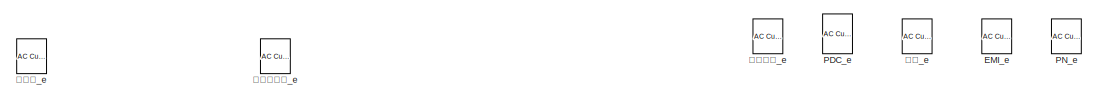
[diagram: root canvas - part 1/4, top center region]
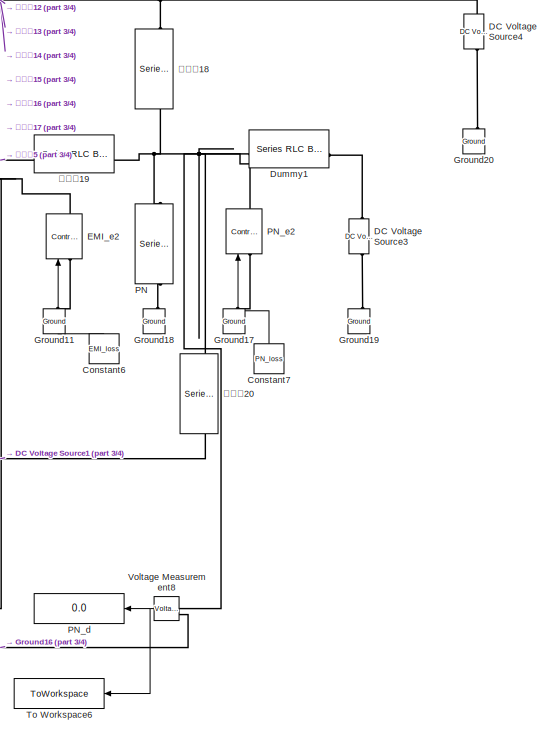
[diagram: root canvas - part 2/4, right side, full height]
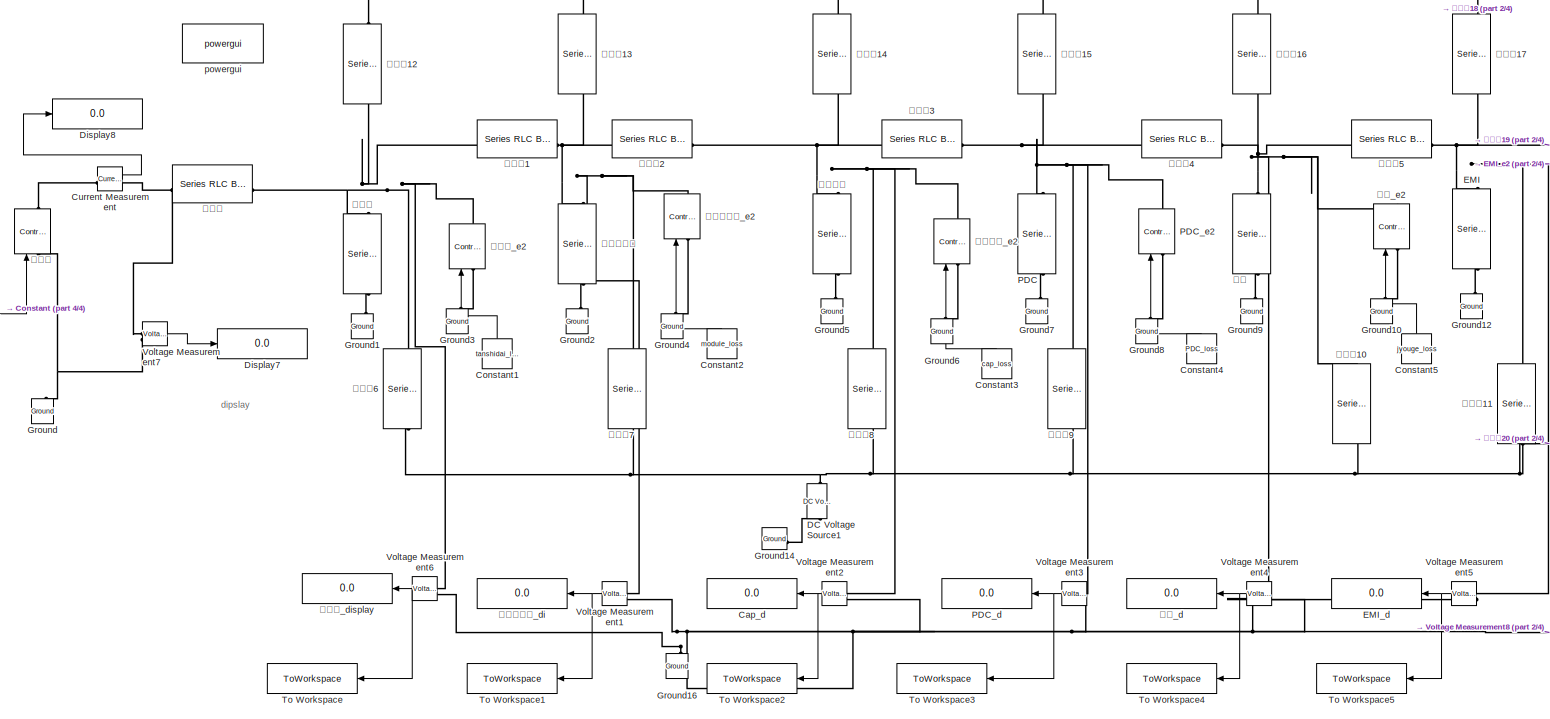
[diagram: root canvas - part 3/4, center side, full height]
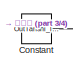
[diagram: root canvas - part 4/4, middle left region]
MODEL slx_35927273fbee
KIND model
CONFIG AbsTol = auto
CONFIG EnableMultiTasking = off
CONFIG FixedStep = auto
CONFIG MaxStep = auto
CONFIG MinStep = auto
CONFIG RelTol = 1e-3
CONFIG SampleTimeConstraint = Unconstrained
CONFIG SolverName = VariableStepAuto
CONFIG StartTime = 0.0
CONFIG StopTime = 1
BLOCK [Display] Cap_d
  Decimation = 1
  NameLocation = top
BLOCK [Constant] Constant
  Value = OutTanshi_loss
BLOCK [Constant] Constant1
  NameLocation = right
  Value = tanshidai_loss
BLOCK [Constant] Constant2
  NameLocation = right
  Value = module_loss
BLOCK [Constant] Constant3
  NameLocation = right
  Value = cap_loss
BLOCK [Constant] Constant4
  NameLocation = right
  Value = PDC_loss
BLOCK [Constant] Constant5
  NameLocation = right
  Value = jyouge_loss
BLOCK [Constant] Constant6
  NameLocation = right
  Value = EMI_loss
BLOCK [Constant] Constant7
  NameLocation = right
  Value = PN_loss
BLOCK [Reference] Current Measurement  REF=spsCurrentMeasurementLib/Current Measurement
  LibrarySourceBlock = sps_lib/Sensors and Measurements/Current Measurement
  SourceBlock = spsCurrentMeasurementLib/Current Measurement
  SourceType = Current Measurement
  UserDataPersistent = on
BLOCK [Reference] DC Voltage Source1  REF=spsDCVoltageSourceLib/DC Voltage Source
  AttributesFormatString = %<Amplitude>℃
  LibrarySourceBlock = sps_lib/Sources/DC Voltage Source
  SourceBlock = spsDCVoltageSourceLib/DC Voltage Source
  SourceType = DC Voltage Source
BLOCK [Reference] DC Voltage Source3  REF=spsDCVoltageSourceLib/DC Voltage Source
  AttributesFormatString = %<Amplitude>℃
  LibrarySourceBlock = sps_lib/Sources/DC Voltage Source
  SourceBlock = spsDCVoltageSourceLib/DC Voltage Source
  SourceType = DC Voltage Source
BLOCK [Reference] DC Voltage Source4  REF=spsDCVoltageSourceLib/DC Voltage Source
  AttributesFormatString = %<Amplitude>℃
  LibrarySourceBlock = sps_lib/Sources/DC Voltage Source
  SourceBlock = spsDCVoltageSourceLib/DC Voltage Source
  SourceType = DC Voltage Source
BLOCK [Display] Display7
  Decimation = 1
BLOCK [Display] Display8
  Decimation = 1
BLOCK [Reference] Dummy1  REF=spsSeriesRLCBranchLib/Series RLC Branch
  AttributesFormatString = %<Resistance>　℃/W
  LibrarySourceBlock = sps_lib/Passives/Series RLC Branch
  NameLocation = top
  SourceBlock = spsSeriesRLCBranchLib/Series RLC Branch
  SourceType = Series RLC Branch
BLOCK [Reference] EMI  REF=spsSeriesRLCBranchLib/Series RLC Branch
  LibrarySourceBlock = sps_lib/Passives/Series RLC Branch
  NameLocation = left
  SourceBlock = spsSeriesRLCBranchLib/Series RLC Branch
  SourceType = Series RLC Branch
BLOCK [Display] EMI_d
  Decimation = 1
  NameLocation = top
BLOCK [Reference] EMI_e  REF=spsACCurrentSourceLib/AC Current Source
  AttributesFormatString = %<Amplitude>W
  Commented = on
  LibrarySourceBlock = sps_lib/Sources/AC Current Source
  SourceBlock = spsACCurrentSourceLib/AC Current Source
  SourceType = AC Current Source
BLOCK [Reference] EMI_e2  REF=spsControlledCurrentSourceLib/Controlled Current Source
  LibrarySourceBlock = sps_lib/Sources/Controlled Current Source
  SourceBlock = spsControlledCurrentSourceLib/Controlled Current Source
  SourceType = Controlled Current Source
BLOCK [Reference] Ground  REF=spsGroundLib/Ground
  LibrarySourceBlock = sps_lib/Utilities/Ground
  NameLocation = right
  SourceBlock = spsGroundLib/Ground
  SourceType = Ground
BLOCK [Reference] Ground1  REF=spsGroundLib/Ground
  LibrarySourceBlock = sps_lib/Utilities/Ground
  NameLocation = right
  SourceBlock = spsGroundLib/Ground
  SourceType = Ground
BLOCK [Reference] Ground10  REF=spsGroundLib/Ground
  LibrarySourceBlock = sps_lib/Utilities/Ground
  NameLocation = right
  SourceBlock = spsGroundLib/Ground
  SourceType = Ground
BLOCK [Reference] Ground11  REF=spsGroundLib/Ground
  LibrarySourceBlock = sps_lib/Utilities/Ground
  NameLocation = right
  SourceBlock = spsGroundLib/Ground
  SourceType = Ground
BLOCK [Reference] Ground12  REF=spsGroundLib/Ground
  LibrarySourceBlock = sps_lib/Utilities/Ground
  NameLocation = right
  SourceBlock = spsGroundLib/Ground
  SourceType = Ground
BLOCK [Reference] Ground14  REF=spsGroundLib/Ground
  LibrarySourceBlock = sps_lib/Utilities/Ground
  SourceBlock = spsGroundLib/Ground
  SourceType = Ground
BLOCK [Reference] Ground16  REF=spsGroundLib/Ground
  LibrarySourceBlock = sps_lib/Utilities/Ground
  NameLocation = right
  SourceBlock = spsGroundLib/Ground
  SourceType = Ground
BLOCK [Reference] Ground17  REF=spsGroundLib/Ground
  LibrarySourceBlock = sps_lib/Utilities/Ground
  NameLocation = right
  SourceBlock = spsGroundLib/Ground
  SourceType = Ground
BLOCK [Reference] Ground18  REF=spsGroundLib/Ground
  LibrarySourceBlock = sps_lib/Utilities/Ground
  NameLocation = right
  SourceBlock = spsGroundLib/Ground
  SourceType = Ground
BLOCK [Reference] Ground19  REF=spsGroundLib/Ground
  LibrarySourceBlock = sps_lib/Utilities/Ground
  NameLocation = right
  SourceBlock = spsGroundLib/Ground
  SourceType = Ground
BLOCK [Reference] Ground2  REF=spsGroundLib/Ground
  LibrarySourceBlock = sps_lib/Utilities/Ground
  NameLocation = right
  SourceBlock = spsGroundLib/Ground
  SourceType = Ground
BLOCK [Reference] Ground20  REF=spsGroundLib/Ground
  LibrarySourceBlock = sps_lib/Utilities/Ground
  NameLocation = right
  SourceBlock = spsGroundLib/Ground
  SourceType = Ground
BLOCK [Reference] Ground3  REF=spsGroundLib/Ground
  LibrarySourceBlock = sps_lib/Utilities/Ground
  NameLocation = right
  SourceBlock = spsGroundLib/Ground
  SourceType = Ground
BLOCK [Reference] Ground4  REF=spsGroundLib/Ground
  LibrarySourceBlock = sps_lib/Utilities/Ground
  NameLocation = right
  SourceBlock = spsGroundLib/Ground
  SourceType = Ground
BLOCK [Reference] Ground5  REF=spsGroundLib/Ground
  LibrarySourceBlock = sps_lib/Utilities/Ground
  NameLocation = right
  SourceBlock = spsGroundLib/Ground
  SourceType = Ground
BLOCK [Reference] Ground6  REF=spsGroundLib/Ground
  LibrarySourceBlock = sps_lib/Utilities/Ground
  NameLocation = right
  SourceBlock = spsGroundLib/Ground
  SourceType = Ground
BLOCK [Reference] Ground7  REF=spsGroundLib/Ground
  LibrarySourceBlock = sps_lib/Utilities/Ground
  NameLocation = right
  SourceBlock = spsGroundLib/Ground
  SourceType = Ground
BLOCK [Reference] Ground8  REF=spsGroundLib/Ground
  LibrarySourceBlock = sps_lib/Utilities/Ground
  NameLocation = right
  SourceBlock = spsGroundLib/Ground
  SourceType = Ground
BLOCK [Reference] Ground9  REF=spsGroundLib/Ground
  LibrarySourceBlock = sps_lib/Utilities/Ground
  NameLocation = right
  SourceBlock = spsGroundLib/Ground
  SourceType = Ground
BLOCK [Reference] PDC  REF=spsSeriesRLCBranchLib/Series RLC Branch
  LibrarySourceBlock = sps_lib/Passives/Series RLC Branch
  NameLocation = left
  SourceBlock = spsSeriesRLCBranchLib/Series RLC Branch
  SourceType = Series RLC Branch
BLOCK [Display] PDC_d
  Decimation = 1
  NameLocation = top
BLOCK [Reference] PDC_e  REF=spsACCurrentSourceLib/AC Current Source
  AttributesFormatString = %<Amplitude>W
  Commented = on
  LibrarySourceBlock = sps_lib/Sources/AC Current Source
  SourceBlock = spsACCurrentSourceLib/AC Current Source
  SourceType = AC Current Source
BLOCK [Reference] PDC_e2  REF=spsControlledCurrentSourceLib/Controlled Current Source
  LibrarySourceBlock = sps_lib/Sources/Controlled Current Source
  SourceBlock = spsControlledCurrentSourceLib/Controlled Current Source
  SourceType = Controlled Current Source
BLOCK [Reference] PN  REF=spsSeriesRLCBranchLib/Series RLC Branch
  LibrarySourceBlock = sps_lib/Passives/Series RLC Branch
  NameLocation = left
  SourceBlock = spsSeriesRLCBranchLib/Series RLC Branch
  SourceType = Series RLC Branch
BLOCK [Display] PN_d
  Decimation = 1
  NameLocation = top
BLOCK [Reference] PN_e  REF=spsACCurrentSourceLib/AC Current Source
  AttributesFormatString = %<Amplitude>W
  Commented = on
  LibrarySourceBlock = sps_lib/Sources/AC Current Source
  SourceBlock = spsACCurrentSourceLib/AC Current Source
  SourceType = AC Current Source
BLOCK [Reference] PN_e2  REF=spsControlledCurrentSourceLib/Controlled Current Source
  LibrarySourceBlock = sps_lib/Sources/Controlled Current Source
  SourceBlock = spsControlledCurrentSourceLib/Controlled Current Source
  SourceType = Controlled Current Source
BLOCK [ToWorkspace] To Workspace
  FixptAsFi = on
  MaxDataPoints = inf
  NameLocation = top
  SampleTime = -1
  VariableName = tanshidai_temp
BLOCK [ToWorkspace] To Workspace1
  FixptAsFi = on
  MaxDataPoints = inf
  NameLocation = top
  SampleTime = -1
  VariableName = module_out
BLOCK [ToWorkspace] To Workspace2
  FixptAsFi = on
  MaxDataPoints = inf
  NameLocation = top
  SampleTime = -1
  VariableName = cap_temp
BLOCK [ToWorkspace] To Workspace3
  FixptAsFi = on
  MaxDataPoints = inf
  NameLocation = top
  SampleTime = -1
  VariableName = PDC_temp
BLOCK [ToWorkspace] To Workspace4
  FixptAsFi = on
  MaxDataPoints = inf
  NameLocation = top
  SampleTime = -1
  VariableName = jyouge_temp
BLOCK [ToWorkspace] To Workspace5
  FixptAsFi = on
  MaxDataPoints = inf
  NameLocation = top
  SampleTime = -1
  VariableName = EMI_temp
BLOCK [ToWorkspace] To Workspace6
  FixptAsFi = on
  MaxDataPoints = inf
  NameLocation = top
  SampleTime = -1
  VariableName = PN_temp
BLOCK [Reference] Voltage Measurement1  REF=spsVoltageMeasurementLib/Voltage Measurement
  LibrarySourceBlock = sps_lib/Sensors and Measurements/Voltage Measurement
  SourceBlock = spsVoltageMeasurementLib/Voltage Measurement
  SourceType = Voltage Measurement
  UserDataPersistent = on
BLOCK [Reference] Voltage Measurement2  REF=spsVoltageMeasurementLib/Voltage Measurement
  LibrarySourceBlock = sps_lib/Sensors and Measurements/Voltage Measurement
  SourceBlock = spsVoltageMeasurementLib/Voltage Measurement
  SourceType = Voltage Measurement
  UserDataPersistent = on
BLOCK [Reference] Voltage Measurement3  REF=spsVoltageMeasurementLib/Voltage Measurement
  LibrarySourceBlock = sps_lib/Sensors and Measurements/Voltage Measurement
  SourceBlock = spsVoltageMeasurementLib/Voltage Measurement
  SourceType = Voltage Measurement
  UserDataPersistent = on
BLOCK [Reference] Voltage Measurement4  REF=spsVoltageMeasurementLib/Voltage Measurement
  LibrarySourceBlock = sps_lib/Sensors and Measurements/Voltage Measurement
  SourceBlock = spsVoltageMeasurementLib/Voltage Measurement
  SourceType = Voltage Measurement
  UserDataPersistent = on
BLOCK [Reference] Voltage Measurement5  REF=spsVoltageMeasurementLib/Voltage Measurement
  LibrarySourceBlock = sps_lib/Sensors and Measurements/Voltage Measurement
  SourceBlock = spsVoltageMeasurementLib/Voltage Measurement
  SourceType = Voltage Measurement
  UserDataPersistent = on
BLOCK [Reference] Voltage Measurement6  REF=spsVoltageMeasurementLib/Voltage Measurement
  LibrarySourceBlock = sps_lib/Sensors and Measurements/Voltage Measurement
  SourceBlock = spsVoltageMeasurementLib/Voltage Measurement
  SourceType = Voltage Measurement
  UserDataPersistent = on
BLOCK [Reference] Voltage Measurement7  REF=spsVoltageMeasurementLib/Voltage Measurement
  LibrarySourceBlock = sps_lib/Sensors and Measurements/Voltage Measurement
  SourceBlock = spsVoltageMeasurementLib/Voltage Measurement
  SourceType = Voltage Measurement
  UserDataPersistent = on
BLOCK [Reference] Voltage Measurement8  REF=spsVoltageMeasurementLib/Voltage Measurement
  LibrarySourceBlock = sps_lib/Sensors and Measurements/Voltage Measurement
  SourceBlock = spsVoltageMeasurementLib/Voltage Measurement
  SourceType = Voltage Measurement
  UserDataPersistent = on
BLOCK [Reference] powergui  REF=sps_lib/powergui
  LibrarySourceBlock = sps_lib/powergui
  Priority = 1
  SourceBlock = sps_lib/powergui
  SourceType = PSB option menu block
BLOCK [Reference] モジュール  REF=spsSeriesRLCBranchLib/Series RLC Branch
  LibrarySourceBlock = sps_lib/Passives/Series RLC Branch
  NameLocation = left
  SourceBlock = spsSeriesRLCBranchLib/Series RLC Branch
  SourceType = Series RLC Branch
BLOCK [Display] モジュール_di
  Decimation = 1
  NameLocation = top
BLOCK [Reference] モジュール_e  REF=spsACCurrentSourceLib/AC Current Source
  AttributesFormatString = %<Amplitude>W
  Commented = on
  LibrarySourceBlock = sps_lib/Sources/AC Current Source
  SourceBlock = spsACCurrentSourceLib/AC Current Source
  SourceType = AC Current Source
BLOCK [Reference] モジュール_e2  REF=spsControlledCurrentSourceLib/Controlled Current Source
  LibrarySourceBlock = sps_lib/Sources/Controlled Current Source
  SourceBlock = spsControlledCurrentSourceLib/Controlled Current Source
  SourceType = Controlled Current Source
BLOCK [Reference] 上下  REF=spsSeriesRLCBranchLib/Series RLC Branch
  LibrarySourceBlock = sps_lib/Passives/Series RLC Branch
  NameLocation = left
  SourceBlock = spsSeriesRLCBranchLib/Series RLC Branch
  SourceType = Series RLC Branch
BLOCK [Display] 上下_d
  Decimation = 1
  NameLocation = top
BLOCK [Reference] 上下_e  REF=spsACCurrentSourceLib/AC Current Source
  AttributesFormatString = %<Amplitude>W
  Commented = on
  LibrarySourceBlock = sps_lib/Sources/AC Current Source
  SourceBlock = spsACCurrentSourceLib/AC Current Source
  SourceType = AC Current Source
BLOCK [Reference] 上下_e2  REF=spsControlledCurrentSourceLib/Controlled Current Source
  LibrarySourceBlock = sps_lib/Sources/Controlled Current Source
  SourceBlock = spsControlledCurrentSourceLib/Controlled Current Source
  SourceType = Controlled Current Source
BLOCK [Reference] 平滑コン  REF=spsSeriesRLCBranchLib/Series RLC Branch
  LibrarySourceBlock = sps_lib/Passives/Series RLC Branch
  NameLocation = left
  SourceBlock = spsSeriesRLCBranchLib/Series RLC Branch
  SourceType = Series RLC Branch
BLOCK [Reference] 平滑コン_e  REF=spsACCurrentSourceLib/AC Current Source
  AttributesFormatString = %<Amplitude>W
  Commented = on
  LibrarySourceBlock = sps_lib/Sources/AC Current Source
  SourceBlock = spsACCurrentSourceLib/AC Current Source
  SourceType = AC Current Source
BLOCK [Reference] 平滑コン_e2  REF=spsControlledCurrentSourceLib/Controlled Current Source
  LibrarySourceBlock = sps_lib/Sources/Controlled Current Source
  SourceBlock = spsControlledCurrentSourceLib/Controlled Current Source
  SourceType = Controlled Current Source
BLOCK [Reference] 熱抵抗  REF=spsSeriesRLCBranchLib/Series RLC Branch
  AttributesFormatString = %<Resistance>　℃/W
  LibrarySourceBlock = sps_lib/Passives/Series RLC Branch
  NameLocation = top
  SourceBlock = spsSeriesRLCBranchLib/Series RLC Branch
  SourceType = Series RLC Branch
BLOCK [Reference] 熱抵抗1  REF=spsSeriesRLCBranchLib/Series RLC Branch
  AttributesFormatString = %<Resistance>　℃/W
  LibrarySourceBlock = sps_lib/Passives/Series RLC Branch
  NameLocation = top
  SourceBlock = spsSeriesRLCBranchLib/Series RLC Branch
  SourceType = Series RLC Branch
BLOCK [Reference] 熱抵抗10  REF=spsSeriesRLCBranchLib/Series RLC Branch
  AttributesFormatString = %<Resistance>　℃/W
  LibrarySourceBlock = sps_lib/Passives/Series RLC Branch
  NameLocation = left
  SourceBlock = spsSeriesRLCBranchLib/Series RLC Branch
  SourceType = Series RLC Branch
BLOCK [Reference] 熱抵抗11  REF=spsSeriesRLCBranchLib/Series RLC Branch
  AttributesFormatString = %<Resistance>　℃/W
  LibrarySourceBlock = sps_lib/Passives/Series RLC Branch
  NameLocation = left
  SourceBlock = spsSeriesRLCBranchLib/Series RLC Branch
  SourceType = Series RLC Branch
BLOCK [Reference] 熱抵抗12  REF=spsSeriesRLCBranchLib/Series RLC Branch
  AttributesFormatString = %<Resistance>　℃/W
  LibrarySourceBlock = sps_lib/Passives/Series RLC Branch
  NameLocation = left
  SourceBlock = spsSeriesRLCBranchLib/Series RLC Branch
  SourceType = Series RLC Branch
BLOCK [Reference] 熱抵抗13  REF=spsSeriesRLCBranchLib/Series RLC Branch
  AttributesFormatString = %<Resistance>　℃/W
  LibrarySourceBlock = sps_lib/Passives/Series RLC Branch
  NameLocation = left
  SourceBlock = spsSeriesRLCBranchLib/Series RLC Branch
  SourceType = Series RLC Branch
BLOCK [Reference] 熱抵抗14  REF=spsSeriesRLCBranchLib/Series RLC Branch
  AttributesFormatString = %<Resistance>　℃/W
  LibrarySourceBlock = sps_lib/Passives/Series RLC Branch
  NameLocation = left
  SourceBlock = spsSeriesRLCBranchLib/Series RLC Branch
  SourceType = Series RLC Branch
BLOCK [Reference] 熱抵抗15  REF=spsSeriesRLCBranchLib/Series RLC Branch
  AttributesFormatString = %<Resistance>　℃/W
  LibrarySourceBlock = sps_lib/Passives/Series RLC Branch
  NameLocation = left
  SourceBlock = spsSeriesRLCBranchLib/Series RLC Branch
  SourceType = Series RLC Branch
BLOCK [Reference] 熱抵抗16  REF=spsSeriesRLCBranchLib/Series RLC Branch
  AttributesFormatString = %<Resistance>　℃/W
  LibrarySourceBlock = sps_lib/Passives/Series RLC Branch
  NameLocation = left
  SourceBlock = spsSeriesRLCBranchLib/Series RLC Branch
  SourceType = Series RLC Branch
BLOCK [Reference] 熱抵抗17  REF=spsSeriesRLCBranchLib/Series RLC Branch
  AttributesFormatString = %<Resistance>　℃/W
  LibrarySourceBlock = sps_lib/Passives/Series RLC Branch
  NameLocation = left
  SourceBlock = spsSeriesRLCBranchLib/Series RLC Branch
  SourceType = Series RLC Branch
BLOCK [Reference] 熱抵抗18  REF=spsSeriesRLCBranchLib/Series RLC Branch
  AttributesFormatString = %<Resistance>　℃/W
  LibrarySourceBlock = sps_lib/Passives/Series RLC Branch
  NameLocation = left
  SourceBlock = spsSeriesRLCBranchLib/Series RLC Branch
  SourceType = Series RLC Branch
BLOCK [Reference] 熱抵抗19  REF=spsSeriesRLCBranchLib/Series RLC Branch
  AttributesFormatString = %<Resistance>　℃/W
  LibrarySourceBlock = sps_lib/Passives/Series RLC Branch
  NameLocation = top
  SourceBlock = spsSeriesRLCBranchLib/Series RLC Branch
  SourceType = Series RLC Branch
BLOCK [Reference] 熱抵抗2  REF=spsSeriesRLCBranchLib/Series RLC Branch
  AttributesFormatString = %<Resistance>　℃/W
  LibrarySourceBlock = sps_lib/Passives/Series RLC Branch
  NameLocation = top
  SourceBlock = spsSeriesRLCBranchLib/Series RLC Branch
  SourceType = Series RLC Branch
BLOCK [Reference] 熱抵抗20  REF=spsSeriesRLCBranchLib/Series RLC Branch
  AttributesFormatString = %<Resistance>　℃/W
  LibrarySourceBlock = sps_lib/Passives/Series RLC Branch
  NameLocation = left
  SourceBlock = spsSeriesRLCBranchLib/Series RLC Branch
  SourceType = Series RLC Branch
BLOCK [Reference] 熱抵抗3  REF=spsSeriesRLCBranchLib/Series RLC Branch
  AttributesFormatString = %<Resistance>　℃/W
  LibrarySourceBlock = sps_lib/Passives/Series RLC Branch
  NameLocation = top
  SourceBlock = spsSeriesRLCBranchLib/Series RLC Branch
  SourceType = Series RLC Branch
BLOCK [Reference] 熱抵抗4  REF=spsSeriesRLCBranchLib/Series RLC Branch
  AttributesFormatString = %<Resistance>　℃/W
  LibrarySourceBlock = sps_lib/Passives/Series RLC Branch
  NameLocation = top
  SourceBlock = spsSeriesRLCBranchLib/Series RLC Branch
  SourceType = Series RLC Branch
BLOCK [Reference] 熱抵抗5  REF=spsSeriesRLCBranchLib/Series RLC Branch
  AttributesFormatString = %<Resistance>　℃/W
  LibrarySourceBlock = sps_lib/Passives/Series RLC Branch
  NameLocation = top
  SourceBlock = spsSeriesRLCBranchLib/Series RLC Branch
  SourceType = Series RLC Branch
BLOCK [Reference] 熱抵抗6  REF=spsSeriesRLCBranchLib/Series RLC Branch
  AttributesFormatString = %<Resistance>　℃/W
  LibrarySourceBlock = sps_lib/Passives/Series RLC Branch
  NameLocation = left
  SourceBlock = spsSeriesRLCBranchLib/Series RLC Branch
  SourceType = Series RLC Branch
BLOCK [Reference] 熱抵抗7  REF=spsSeriesRLCBranchLib/Series RLC Branch
  AttributesFormatString = %<Resistance>　℃/W
  LibrarySourceBlock = sps_lib/Passives/Series RLC Branch
  NameLocation = left
  SourceBlock = spsSeriesRLCBranchLib/Series RLC Branch
  SourceType = Series RLC Branch
BLOCK [Reference] 熱抵抗8  REF=spsSeriesRLCBranchLib/Series RLC Branch
  AttributesFormatString = %<Resistance>　℃/W
  LibrarySourceBlock = sps_lib/Passives/Series RLC Branch
  NameLocation = left
  SourceBlock = spsSeriesRLCBranchLib/Series RLC Branch
  SourceType = Series RLC Branch
BLOCK [Reference] 熱抵抗9  REF=spsSeriesRLCBranchLib/Series RLC Branch
  AttributesFormatString = %<Resistance>　℃/W
  LibrarySourceBlock = sps_lib/Passives/Series RLC Branch
  NameLocation = left
  SourceBlock = spsSeriesRLCBranchLib/Series RLC Branch
  SourceType = Series RLC Branch
BLOCK [Reference] 相手側  REF=spsControlledCurrentSourceLib/Controlled Current Source
  LibrarySourceBlock = sps_lib/Sources/Controlled Current Source
  SourceBlock = spsControlledCurrentSourceLib/Controlled Current Source
  SourceType = Controlled Current Source
BLOCK [Reference] 端子台  REF=spsSeriesRLCBranchLib/Series RLC Branch
  LibrarySourceBlock = sps_lib/Passives/Series RLC Branch
  NameLocation = left
  SourceBlock = spsSeriesRLCBranchLib/Series RLC Branch
  SourceType = Series RLC Branch
BLOCK [Display] 端子台_display
  Decimation = 1
  NameLocation = top
BLOCK [Reference] 端子台_e  REF=spsACCurrentSourceLib/AC Current Source
  AttributesFormatString = %<Amplitude>W
  Commented = on
  LibrarySourceBlock = sps_lib/Sources/AC Current Source
  SourceBlock = spsACCurrentSourceLib/AC Current Source
  SourceType = AC Current Source
BLOCK [Reference] 端子台_e2  REF=spsControlledCurrentSourceLib/Controlled Current Source
  LibrarySourceBlock = sps_lib/Sources/Controlled Current Source
  SourceBlock = spsControlledCurrentSourceLib/Controlled Current Source
  SourceType = Controlled Current Source
ANNOTATION (root): dipslay
LINE Constant1:1 -> 端子台_e2:1
LINE Constant2:1 -> モジュール_e2:1
LINE Constant3:1 -> 平滑コン_e2:1
LINE Constant4:1 -> PDC_e2:1
LINE Constant5:1 -> 上下_e2:1
LINE Constant6:1 -> EMI_e2:1
LINE Constant7:1 -> PN_e2:1
LINE Constant:1 -> 相手側:1
LINE Current Measurement:1 -> Display8:1
NET Voltage Measurement1:1 -> To Workspace1:1, モジュール_di:1
NET Voltage Measurement2:1 -> Cap_d:1, To Workspace2:1
NET Voltage Measurement3:1 -> PDC_d:1, To Workspace3:1
NET Voltage Measurement4:1 -> To Workspace4:1, 上下_d:1
NET Voltage Measurement5:1 -> EMI_d:1, To Workspace5:1
NET Voltage Measurement6:1 -> To Workspace:1, 端子台_display:1
LINE Voltage Measurement7:1 -> Display7:1
NET Voltage Measurement8:1 -> PN_d:1, To Workspace6:1
PLINE Current Measurement:LConn1 -- 相手側:RConn1
PNET net1: Current Measurement:RConn1 -- Voltage Measurement7:LConn1 -- 熱抵抗:RConn1
PLINE DC Voltage Source1:LConn1 -- Ground14:LConn1
PNET net2: DC Voltage Source1:RConn1 -- 熱抵抗10:RConn1 -- 熱抵抗11:RConn1 -- 熱抵抗20:RConn1 -- 熱抵抗6:RConn1 -- 熱抵抗7:RConn1 -- 熱抵抗8:RConn1 -- 熱抵抗9:RConn1
PLINE DC Voltage Source3:LConn1 -- Ground19:LConn1
PLINE DC Voltage Source3:RConn1 -- Dummy1:LConn1
PLINE DC Voltage Source4:LConn1 -- Ground20:LConn1
PNET net3: DC Voltage Source4:RConn1 -- 熱抵抗12:LConn1 -- 熱抵抗13:LConn1 -- 熱抵抗14:LConn1 -- 熱抵抗15:LConn1 -- 熱抵抗16:LConn1 -- 熱抵抗17:LConn1 -- 熱抵抗18:LConn1
PNET net4: Dummy1:RConn1 -- PN:LConn1 -- PN_e2:RConn1 -- Voltage Measurement8:LConn1 -- 熱抵抗18:RConn1 -- 熱抵抗19:LConn1 -- 熱抵抗20:LConn1
PNET net5: EMI:LConn1 -- EMI_e2:RConn1 -- Voltage Measurement5:LConn1 -- 熱抵抗11:LConn1 -- 熱抵抗17:RConn1 -- 熱抵抗19:RConn1 -- 熱抵抗5:LConn1
PLINE EMI:RConn1 -- Ground12:LConn1
PLINE EMI_e2:LConn1 -- Ground11:LConn1
PLINE Ground10:LConn1 -- 上下_e2:LConn1
PNET net6: Ground16:LConn1 -- Voltage Measurement1:LConn2 -- Voltage Measurement2:LConn2 -- Voltage Measurement3:LConn2 -- Voltage Measurement4:LConn2 -- Voltage Measurement5:LConn2 -- Voltage Measurement6:LConn2 -- Voltage Measurement8:LConn2
PLINE Ground17:LConn1 -- PN_e2:LConn1
PLINE Ground18:LConn1 -- PN:RConn1
PLINE Ground1:LConn1 -- 端子台:RConn1
PLINE Ground2:LConn1 -- モジュール:RConn1
PLINE Ground3:LConn1 -- 端子台_e2:LConn1
PLINE Ground4:LConn1 -- モジュール_e2:LConn1
PLINE Ground5:LConn1 -- 平滑コン:RConn1
PLINE Ground6:LConn1 -- 平滑コン_e2:LConn1
PLINE Ground7:LConn1 -- PDC:RConn1
PLINE Ground8:LConn1 -- PDC_e2:LConn1
PLINE Ground9:LConn1 -- 上下:RConn1
PNET net7: Ground:LConn1 -- Voltage Measurement7:LConn2 -- 相手側:LConn1
PNET net8: PDC:LConn1 -- PDC_e2:RConn1 -- Voltage Measurement3:LConn1 -- 熱抵抗15:RConn1 -- 熱抵抗3:LConn1 -- 熱抵抗4:RConn1 -- 熱抵抗9:LConn1
PNET net9: Voltage Measurement1:LConn1 -- モジュール:LConn1 -- モジュール_e2:RConn1 -- 熱抵抗13:RConn1 -- 熱抵抗1:LConn1 -- 熱抵抗2:RConn1 -- 熱抵抗7:LConn1
PNET net10: Voltage Measurement2:LConn1 -- 平滑コン:LConn1 -- 平滑コン_e2:RConn1 -- 熱抵抗14:RConn1 -- 熱抵抗2:LConn1 -- 熱抵抗3:RConn1 -- 熱抵抗8:LConn1
PNET net11: Voltage Measurement4:LConn1 -- 上下:LConn1 -- 上下_e2:RConn1 -- 熱抵抗10:LConn1 -- 熱抵抗16:RConn1 -- 熱抵抗4:LConn1 -- 熱抵抗5:RConn1
PNET net12: Voltage Measurement6:LConn1 -- 熱抵抗12:RConn1 -- 熱抵抗1:RConn1 -- 熱抵抗6:LConn1 -- 熱抵抗:LConn1 -- 端子台:LConn1 -- 端子台_e2:RConn1
note: NET lines group one-source signal fan-out (src -> all destinations, sorted); 1:1 wires keep LINE; PNET lines group multi-terminal physical nets as a canonical sorted terminal list (undirected conserving connections); 2-terminal nets keep the pairwise PLINE form
